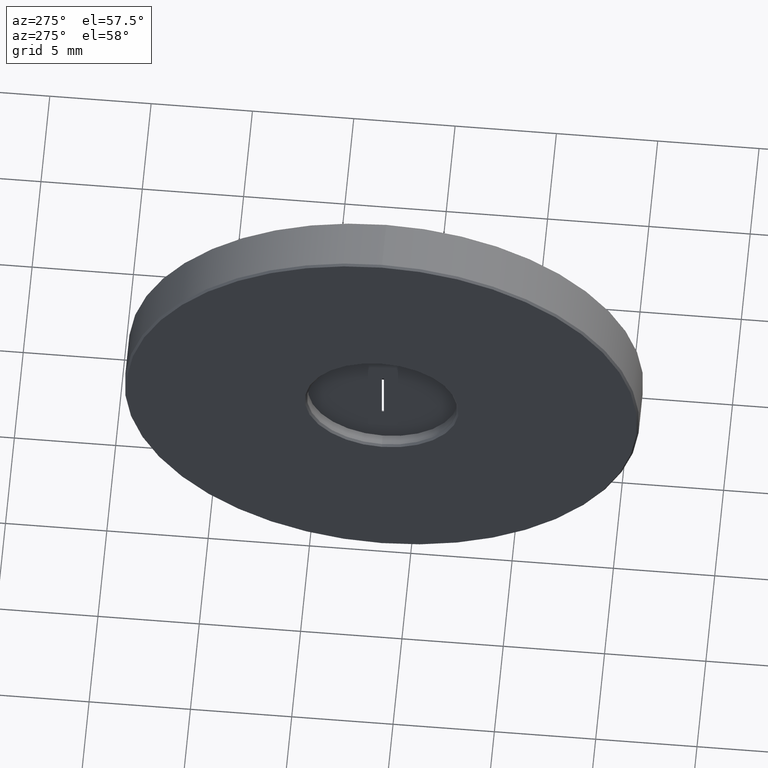
[diagram: clean part render]
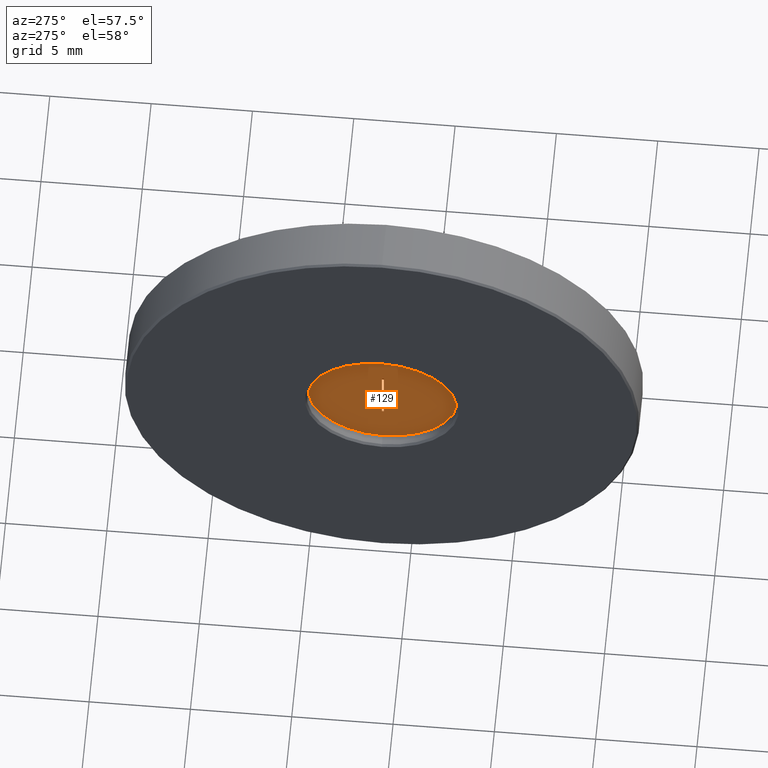
[diagram: same view with one face highlighted and labeled with its STEP entity id]
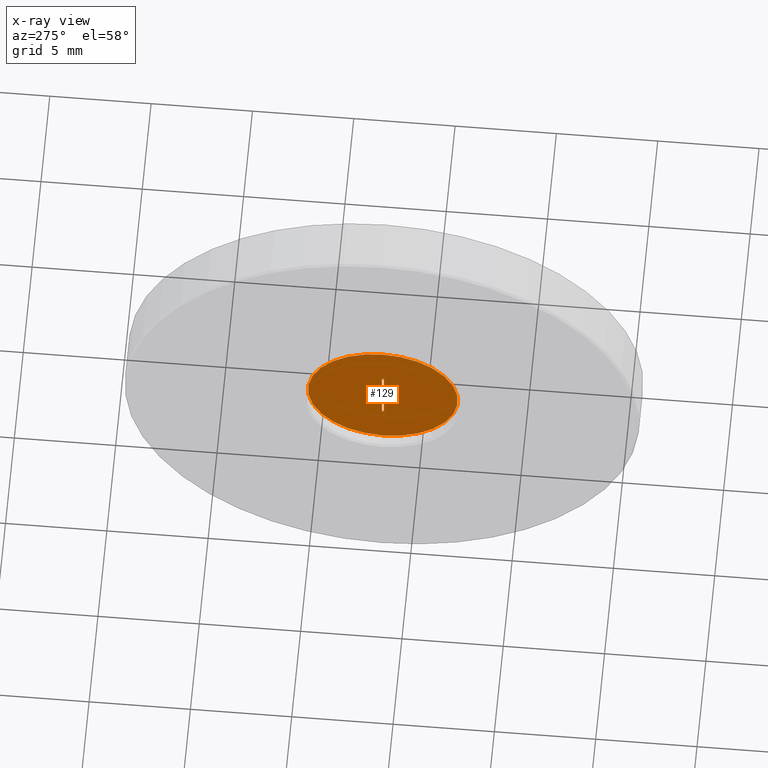
[diagram: x-ray of the same camera — body ghosted, the highlighted face saturated]
A machine part, auxiliary view. The second image highlights one B-rep face of the part: STEP entity #129.
The next image is the same camera in x-ray: the body ghosted, the highlighted face saturated — about 0% of this face is hidden behind the body in this view.
In plain terms, the highlighted planar face has unit normal (1, 0, 0).
Its self-contained STEP definition (entity closure, byte-faithful):
#10 = VERTEX_POINT ( 'NONE', #885 ) ;
#14 = EDGE_LOOP ( 'NONE', ( #277, #653, #419, #729 ) ) ;
#31 = DIRECTION ( 'NONE',  ( -1.000000000000000000, 0.000000000000000000, 0.000000000000000000 ) ) ;
#39 = CARTESIAN_POINT ( 'NONE',  ( -4.334863851253000000, 1.436758841085000071, 25.39999999999999858 ) ) ;
#47 = DIRECTION ( 'NONE',  ( 0.000000000000000000, 0.000000000000000000, -1.000000000000000000 ) ) ;
#57 = DIRECTION ( 'NONE',  ( 0.000000000000000000, 1.000000000000000000, 0.000000000000000000 ) ) ;
#80 = EDGE_LOOP ( 'NONE', ( #803, #415 ) ) ;
#129 = ADVANCED_FACE ( 'NONE', ( #612, #900 ), #402, .F. ) ;
#164 = CARTESIAN_POINT ( 'NONE',  ( -4.334863851253000000, 1.436758841085000071, 25.39999999999999858 ) ) ;
#171 = DIRECTION ( 'NONE',  ( 0.000000000000000000, 0.000000000000000000, -1.000000000000000000 ) ) ;
#246 = CARTESIAN_POINT ( 'NONE',  ( -4.334863851253000000, 1.486758841084999894, 26.89999999999999858 ) ) ;
#264 = EDGE_CURVE ( 'NONE', #435, #10, #403, .T. ) ;
#277 = ORIENTED_EDGE ( 'NONE', *, *, #549, .T. ) ;
#305 = VECTOR ( 'NONE', #764, 1000.000000000000000 ) ;
#325 = CARTESIAN_POINT ( 'NONE',  ( -4.334863851253000000, 1.486758841084999894, 23.89999999999999858 ) ) ;
#402 = PLANE ( 'NONE',  #824 ) ;
#403 = CIRCLE ( 'NONE', #767, 3.700000000000001954 ) ;
#415 = ORIENTED_EDGE ( 'NONE', *, *, #919, .T. ) ;
#419 = ORIENTED_EDGE ( 'NONE', *, *, #897, .T. ) ;
#420 = CARTESIAN_POINT ( 'NONE',  ( -4.334863851253000000, 1.386758841085000027, 26.89999999999999858 ) ) ;
#435 = VERTEX_POINT ( 'NONE', #841 ) ;
#479 = CARTESIAN_POINT ( 'NONE',  ( -4.334863851253000000, 1.386758841085000027, 26.89999999999999858 ) ) ;
#498 = DIRECTION ( 'NONE',  ( 0.000000000000000000, 0.000000000000000000, 1.000000000000000000 ) ) ;
#524 = EDGE_CURVE ( 'NONE', #707, #866, #925, .T. ) ;
#549 = EDGE_CURVE ( 'NONE', #738, #707, #639, .T. ) ;
#557 = LINE ( 'NONE', #420, #870 ) ;
#565 = CARTESIAN_POINT ( 'NONE',  ( -4.334863851253000000, 1.386758841085000027, 23.89999999999999858 ) ) ;
#584 = VECTOR ( 'NONE', #498, 1000.000000000000000 ) ;
#590 = DIRECTION ( 'NONE',  ( 0.000000000000000000, 0.000000000000000000, -1.000000000000000000 ) ) ;
#593 = DIRECTION ( 'NONE',  ( -1.000000000000000000, 0.000000000000000000, 0.000000000000000000 ) ) ;
#612 = FACE_BOUND ( 'NONE', #14, .T. ) ;
#639 = LINE ( 'NONE', #851, #749 ) ;
#641 = EDGE_CURVE ( 'NONE', #857, #738, #557, .T. ) ;
#653 = ORIENTED_EDGE ( 'NONE', *, *, #524, .T. ) ;
#683 = CARTESIAN_POINT ( 'NONE',  ( -4.334863851253000000, 1.436758841085000071, 25.39999999999999858 ) ) ;
#691 = LINE ( 'NONE', #905, #305 ) ;
#707 = VERTEX_POINT ( 'NONE', #325 ) ;
#729 = ORIENTED_EDGE ( 'NONE', *, *, #641, .T. ) ;
#738 = VERTEX_POINT ( 'NONE', #565 ) ;
#749 = VECTOR ( 'NONE', #57, 1000.000000000000000 ) ;
#764 = DIRECTION ( 'NONE',  ( 0.000000000000000000, -1.000000000000000000, 0.000000000000000000 ) ) ;
#767 = AXIS2_PLACEMENT_3D ( 'NONE', #164, #593, #590 ) ;
#803 = ORIENTED_EDGE ( 'NONE', *, *, #264, .T. ) ;
#808 = CIRCLE ( 'NONE', #842, 3.700000000000001954 ) ;
#824 = AXIS2_PLACEMENT_3D ( 'NONE', #39, #833, #171 ) ;
#833 = DIRECTION ( 'NONE',  ( 1.000000000000000000, 0.000000000000000000, 0.000000000000000000 ) ) ;
#839 = DIRECTION ( 'NONE',  ( 0.000000000000000000, 0.000000000000000000, -1.000000000000000000 ) ) ;
#841 = CARTESIAN_POINT ( 'NONE',  ( -4.334863851253000000, 1.436758841085000071, 21.69999999999999574 ) ) ;
#842 = AXIS2_PLACEMENT_3D ( 'NONE', #683, #31, #839 ) ;
#851 = CARTESIAN_POINT ( 'NONE',  ( -4.334863851253000000, 1.486758841084999894, 23.89999999999999858 ) ) ;
#857 = VERTEX_POINT ( 'NONE', #479 ) ;
#864 = CARTESIAN_POINT ( 'NONE',  ( -4.334863851253000000, 1.486758841084999894, 26.89999999999999858 ) ) ;
#866 = VERTEX_POINT ( 'NONE', #246 ) ;
#870 = VECTOR ( 'NONE', #47, 1000.000000000000000 ) ;
#885 = CARTESIAN_POINT ( 'NONE',  ( -4.334863851253000000, 1.436758841085000515, 29.10000000000000142 ) ) ;
#897 = EDGE_CURVE ( 'NONE', #866, #857, #691, .T. ) ;
#900 = FACE_OUTER_BOUND ( 'NONE', #80, .T. ) ;
#905 = CARTESIAN_POINT ( 'NONE',  ( -4.334863851253000000, 1.486758841084999894, 26.89999999999999858 ) ) ;
#919 = EDGE_CURVE ( 'NONE', #10, #435, #808, .T. ) ;
#925 = LINE ( 'NONE', #864, #584 ) ;